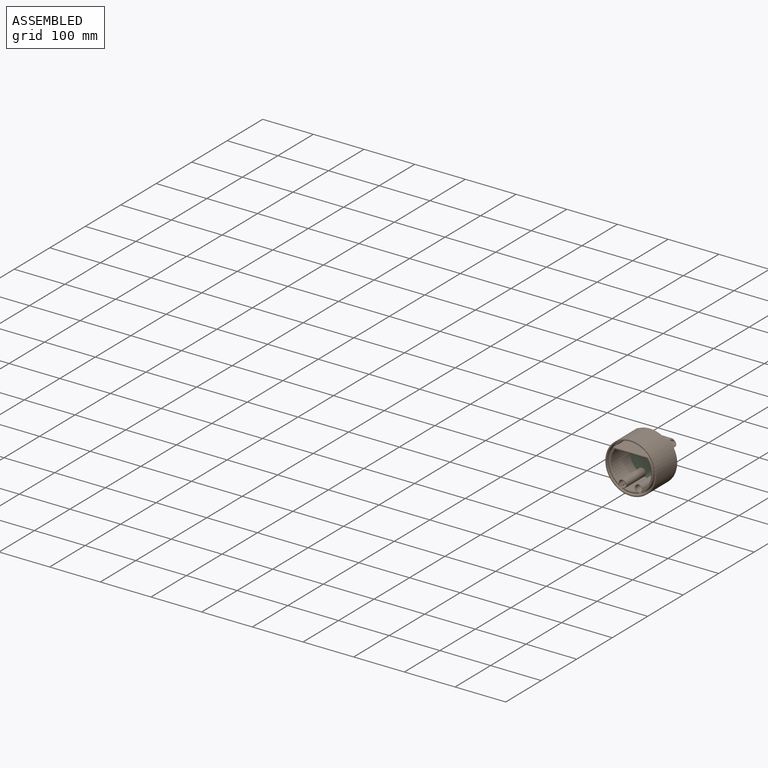
[diagram: assembled view]
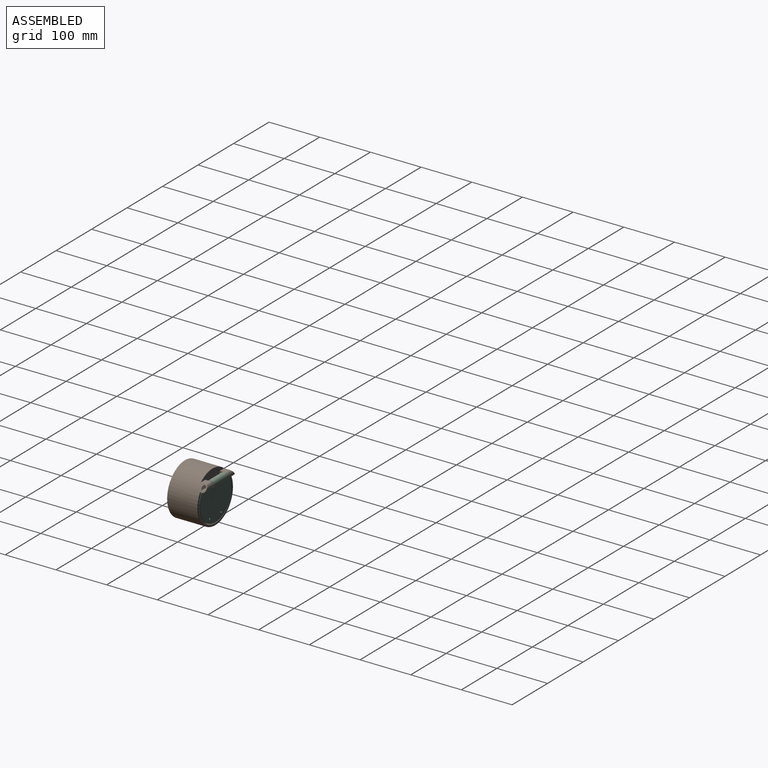
[diagram: assembled view, second angle]
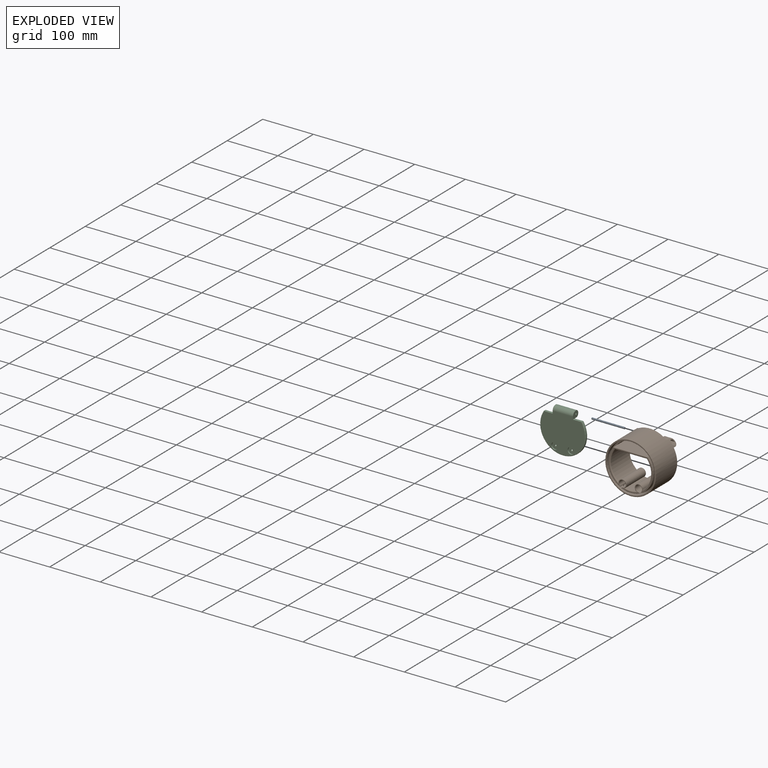
[diagram: exploded view]
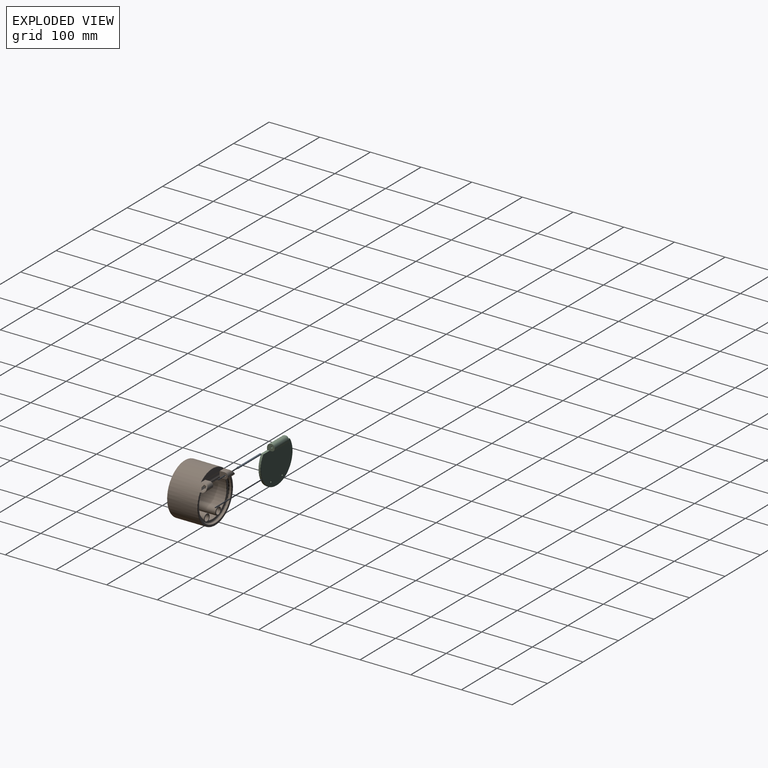
[diagram: exploded view, second angle]
ASSEMBLY  parts=3 mates=4
PART A: 3 faces, bbox 65x3.5x3.5 mm
  f0: cylinder r=1.75mm len=65mm, axis (-1,0,0), area 714.7mm2, adj f1,f2
  f1: plane 3.5x3.5mm, normal (1,0,0), area 9.6mm2, adj f0
  f2: plane 3.5x3.5mm, normal (-1,0,0), area 9.6mm2, adj f0
PART B: 107 faces, bbox 108.8x71.1x108.8 mm
  f0: plane 41x3.27mm, normal (0,1,0), area 133.9mm2, adj f20,f22,f33,f106
  f1: cylinder r=4.62mm len=11.63mm, axis (1,0,0), area 233mm2, adj f18,f98
  f2: plane 11.26x4.57mm, normal (0,0.16,0.99), area 50.8mm2, adj f3,f7,f18,f96
  f3: plane 10.79x4.35mm, normal (0,0.93,0.36), area 42.4mm2, adj f2,f4,f18,f96
  f4: plane 7.54x3.66mm, normal (0,0.78,-0.63), area 27mm2, adj f3,f5,f18,f96
  f5: plane 4.86x4.59mm, normal (0,-0.16,-0.99), area 20.6mm2, adj f4,f6,f18,f96
  f6: plane 8.7x4.36mm, normal (0,-0.93,-0.36), area 31.5mm2, adj f5,f7,f18,f96
  f7: plane 11.29x3.63mm, normal (0,-0.78,0.63), area 46.1mm2, adj f2,f6,f18,f96
  f8: cylinder r=44.17mm len=67.28mm, axis (0,-1,0), area 666.1mm2, adj f57,f65,f66,f83
  f9: plane 87.35x71.59mm, normal (0,-1,0), area 424.1mm2, adj f66,f67,f68,f69,f72,f73,f74,f75
  f10: cylinder r=6.5mm len=53mm, axis (0,-1,0), area 1984.3mm2, adj f43,f53,f54,f55,f80
  f11: cylinder r=44.17mm len=36.19mm, axis (0,-1,0), area 317mm2, adj f64,f69,f77,f92
  f12: cylinder r=6.5mm len=53mm, axis (0,-1,0), area 1976.7mm2, adj f42,f50,f51,f52,f89
  f13: plane 87.2x68.8mm, normal (0,1,0), area 650.1mm2, adj f26,f27,f37,f40,f41,f101,f102,f103
  f14: cylinder r=40mm len=56.62mm, axis (0,-1,0), area 3338.2mm2, adj f17,f39,f73,f101
  f15: cylinder r=40mm len=52.5mm, axis (0,-1,0), area 1174.7mm2, adj f38,f39,f72,f105
  f16: plane 64.16x11.8mm, normal (0,1,0), area 518.3mm2, adj f24,f25,f34,f71
  f17: plane 62.93x52.5mm, normal (0,0,-1), area 3303.9mm2, adj f14,f23,f74,f106
  f18: cylinder r=50mm len=100mm, axis (0,1,0), area 18440.8mm2, adj f1,f2,f3,f4,f5,f6,f7,f19
  f19: plane 18.67x0.5mm, normal (0,1,0), area 9.2mm2, adj f18,f20,f28,f31
  f20: plane 16.2x12.5mm, normal (1,0,0), area 173.6mm2, adj f0,f19,f24,f27,f28,f31,f32,f33
  f21: plane 18.48x0.5mm, normal (0,1,0), area 9.1mm2, adj f18,f22,f29,f30
  f22: plane 16.2x12.5mm, normal (-1,0,0), area 173.6mm2, adj f0,f21,f25,f26,f29,f30,f32,f33
  f23: cylinder r=40mm len=56.68mm, axis (0,-1,0), area 3343.5mm2, adj f17,f38,f75,f102
  f24: plane 12.64x10.2mm, normal (0,0,1), area 118.3mm2, adj f16,f18,f20,f31,f71
  f25: plane 12.46x10.2mm, normal (0,0,1), area 116.5mm2, adj f16,f18,f22,f30,f71
  f26: plane 23.15x10.06mm, normal (0,0,-1), area 185.3mm2, adj f13,f18,f22,f29,f35,f36,f37,f70
  f27: plane 23.34x10.06mm, normal (0,0,-1), area 187mm2, adj f13,f18,f20,f28,f35,f36,f37,f70
  f28: cylinder r=6mm len=22.78mm, axis (-1,0,0), area 195.3mm2, adj f18,f19,f20,f27
  f29: cylinder r=6mm len=22.6mm, axis (-1,0,0), area 193.6mm2, adj f18,f21,f22,f26
  f30: cylinder r=6mm len=18.08mm, axis (-1,0,0), area 142.9mm2, adj f18,f21,f22,f25
  f31: cylinder r=6mm len=18.26mm, axis (1,0,0), area 144.7mm2, adj f18,f19,f20,f24
  f32: plane 41x2.69mm, normal (0,1,0), area 110.2mm2, adj f20,f22,f33,f34
  f33: cylinder r=8mm len=41mm, axis (1,0,0), area 138.2mm2, adj f0,f20,f22,f32
  f34: cylinder r=8mm len=41mm, axis (1,0,0), area 138.2mm2, adj f16,f20,f22,f32
  f35: cylinder r=45.6mm len=91.2mm, axis (0,-1,0), area 589.9mm2, adj f26,f27,f37,f100
  f36: plane 99x74.7mm, normal (0,1,0), area 691.1mm2, adj f26,f27,f70,f100
  f37: torus R=43.6mm, axis (0,1,0), area 612.2mm2, adj f13,f26,f27,f35
  f38: cylinder r=8mm len=54mm, axis (0,-1,0), area 1729.8mm2, adj f15,f23,f72,f75,f94,f104
  f39: cylinder r=8mm len=54mm, axis (0,-1,0), area 1729.8mm2, adj f14,f15,f72,f73,f95,f103
  f40: cylinder r=6mm len=12mm, axis (0,1,0), area 37.7mm2, adj f13,f42
  f41: cylinder r=6mm len=12mm, axis (0,1,0), area 37.7mm2, adj f13,f43
  f42: torus R=6mm, axis (0,1,0), area 31.2mm2, adj f12,f40
  f43: torus R=6mm, axis (0,1,0), area 31.2mm2, adj f10,f41
  f44: plane 99x99mm, normal (0,-1,0), area 526.5mm2, adj f62,f63
  f45: cylinder r=44.17mm len=67.18mm, axis (0,-1,0), area 664.4mm2, adj f57,f59,f68,f86
  f46: cylinder r=47.28mm len=94.55mm, axis (0,-1,0), area 2524.9mm2, adj f60,f62
  f47: plane 92.66x92.66mm, normal (0,-1,0), area 318.5mm2, adj f49,f59,f60,f61,f64,f65,f76,f84
  f48: plane 15.48x2.66mm, normal (0.48,0,0.88), area 22.7mm2, adj f50,f51,f52,f59,f64,f85,f93
  f49: cylinder r=44.17mm len=15mm, axis (0,-1,0), area 22.1mm2, adj f47,f53,f54,f55,f76,f84
  f50: cylinder r=5mm len=29.3mm, axis (0,1,0), area 89mm2, adj f12,f48,f52,f90,f92,f93
  f51: cylinder r=5mm len=29.13mm, axis (0,1,0), area 87.4mm2, adj f12,f48,f52,f85,f86,f88
  f52: bspline ~10.33x7.47mm, area 22.2mm2, adj f12,f48,f50,f51
  f53: cylinder r=5mm len=28.85mm, axis (0,1,0), area 80.4mm2, adj f10,f49,f55,f81,f83,f84
  f54: cylinder r=5mm len=28.99mm, axis (0,1,0), area 82.4mm2, adj f10,f49,f55,f76,f77,f79
  f55: bspline ~10.82x6.72mm, area 19.3mm2, adj f10,f49,f53,f54
  f56: cylinder r=44.17mm len=67.64mm, axis (0,-1,0), area 2396mm2, adj f57,f58,f61
  f57: plane 70.53x41.9mm, normal (0,0,1), area 2815mm2, adj f8,f45,f56,f58,f59,f61,f65,f67
  f58: plane 67.64x15.76mm, normal (0,-1,0), area 740.5mm2, adj f56,f57
  f59: torus R=45.17mm, axis (0,-1,0), area 124.1mm2, adj f45,f47,f48,f57,f64,f85
  f60: torus R=46.28mm, axis (0,-1,0), area 463mm2, adj f46,f47
  f61: torus R=45.17mm, axis (0,-1,0), area 123.3mm2, adj f47,f56,f57
  f62: torus R=47.78mm, axis (0,-1,0), area 234.2mm2, adj f44,f46
  f63: torus R=49.5mm, axis (0,-1,0), area 245.8mm2, adj f18,f44
  f64: torus R=45.17mm, axis (0,-1,0), area 61.4mm2, adj f11,f47,f48,f59,f76,f93
  f65: torus R=45.17mm, axis (0,-1,0), area 124.1mm2, adj f8,f47,f57,f84
  f66: torus R=43.67mm, axis (0,-1,0), area 61.2mm2, adj f8,f9,f67,f82
  f67: cylinder r=0.5mm len=67.64mm, axis (-1,0,0), area 52.9mm2, adj f9,f57,f66,f68
  f68: torus R=43.67mm, axis (0,-1,0), area 61mm2, adj f9,f45,f67,f87
  f69: torus R=43.67mm, axis (0,-1,0), area 29.2mm2, adj f9,f11,f78,f91
  f70: torus R=49.5mm, axis (0,1,0), area 164.5mm2, adj f18,f26,f27,f36
  f71: torus R=49.5mm, axis (0,1,0), area 55.6mm2, adj f16,f18,f24,f25
  f72: torus R=42mm, axis (0,-1,0), area 77.3mm2, adj f9,f15,f38,f39,f94,f95
  f73: torus R=42mm, axis (0,-1,0), area 207.7mm2, adj f9,f14,f39,f74,f95
  f74: cylinder r=2mm len=64.85mm, axis (-1,0,0), area 200.7mm2, adj f9,f17,f73,f75
  f75: torus R=42mm, axis (0,-1,0), area 208.1mm2, adj f9,f23,f38,f74,f94
  f76: bspline ~1.81x1.6mm, area 1.4mm2, adj f47,f49,f54,f64,f77
  f77: cylinder r=0.5mm len=8.5mm, axis (0,-1,0), area 9.2mm2, adj f11,f54,f76,f78
  f78: sphere r=0.5mm, area 0.5mm2, adj f69,f77,f79
  f79: torus R=4.5mm, axis (0,-1,0), area 1.9mm2, adj f9,f54,f78,f80
  f80: torus R=7mm, axis (0,-1,0), area 27.9mm2, adj f9,f10,f79,f81
  f81: torus R=4.5mm, axis (0,-1,0), area 1.8mm2, adj f9,f53,f80,f82
  f82: sphere r=0.5mm, area 0.5mm2, adj f66,f81,f83
  f83: cylinder r=0.5mm len=8.5mm, axis (0,-1,0), area 9.6mm2, adj f8,f53,f82,f84
  f84: bspline ~2.03x1.78mm, area 1.5mm2, adj f47,f49,f53,f65,f83
  f85: bspline ~1.74x1.52mm, area 1.2mm2, adj f48,f51,f59,f86
  f86: cylinder r=0.5mm len=8.5mm, axis (0,-1,0), area 9.3mm2, adj f45,f51,f85,f87
  f87: sphere r=0.5mm, area 0.5mm2, adj f68,f86,f88
  f88: torus R=4.5mm, axis (0,-1,0), area 1.9mm2, adj f9,f51,f87,f89
  f89: torus R=7mm, axis (0,-1,0), area 27.8mm2, adj f9,f12,f88,f90
  f90: torus R=4.5mm, axis (0,-1,0), area 1.9mm2, adj f9,f50,f89,f91
  f91: sphere r=0.5mm, area 0.4mm2, adj f69,f90,f92
  f92: cylinder r=0.5mm len=8.5mm, axis (0,1,0), area 9.3mm2, adj f11,f50,f91,f93
  f93: bspline ~1.76x1.32mm, area 1.3mm2, adj f48,f50,f64,f92
  f94: torus R=7.5mm, axis (0,-1,0), area 27.9mm2, adj f9,f38,f72,f75
  f95: torus R=7.5mm, axis (0,-1,0), area 27.9mm2, adj f9,f39,f72,f73
  f96: plane 9.12x8.63mm, normal (1,0,0), area 45.8mm2, adj f2,f3,f4,f5,f6,f7,f97
  f97: cylinder r=1.75mm len=10mm, axis (-1,0,0), area 110mm2, adj f22,f96
  f98: plane 9.24x9.24mm, normal (-1,0,0), area 57.4mm2, adj f1,f99
  f99: cylinder r=1.75mm len=10mm, axis (1,0,0), area 110mm2, adj f20,f98
  f100: torus R=46.1mm, axis (0,1,0), area 154.8mm2, adj f26,f27,f35,f36
  f101: torus R=40.5mm, axis (0,1,0), area 50.7mm2, adj f13,f14,f103,f106
  f102: torus R=40.5mm, axis (0,1,0), area 50.7mm2, adj f13,f23,f104,f106
  f103: torus R=7.5mm, axis (0,1,0), area 25.4mm2, adj f13,f39,f101,f105
  f104: torus R=7.5mm, axis (0,1,0), area 25.4mm2, adj f13,f38,f102,f105
  f105: torus R=40.5mm, axis (0,1,0), area 18.5mm2, adj f13,f15,f103,f104
  f106: cylinder r=0.5mm len=63.42mm, axis (-1,0,0), area 49.6mm2, adj f0,f17,f26,f27,f101,f102
PART C: 24 faces, bbox 97.4x15x86.4 mm
  f0: cylinder r=45mm len=90mm, axis (0,-1,0), area 677.8mm2, adj f2,f4,f14,f23
  f1: plane 15x13mm, normal (1,0,0), area 156.2mm2, adj f2,f5,f6,f7,f8,f10,f11,f12
  f2: plane 17.53x5mm, normal (0,0,1), area 87.3mm2, adj f0,f1,f7,f9,f14,f23
  f3: plane 15x13mm, normal (-1,0,0), area 156.2mm2, adj f4,f5,f6,f7,f8,f10,f11,f12
  f4: plane 17.71x5mm, normal (0,0,1), area 88.2mm2, adj f0,f3,f7,f9,f14,f23
  f5: plane 40x1mm, normal (0,0,1), area 40mm2, adj f1,f3,f11,f12
  f6: plane 40x4mm, normal (0,0,-1), area 160mm2, adj f1,f3,f9,f10
  f7: plane 88x73.7mm, normal (0,-1,0), area 5028.6mm2, adj f1,f2,f3,f4,f12,f14,f15,f17
  f8: plane 40x1mm, normal (0,1,0), area 40mm2, adj f1,f3,f10,f11
  f9: plane 89x69.2mm, normal (0,1,0), area 5164.7mm2, adj f2,f4,f6,f21,f22,f23
  f10: cylinder r=6mm len=40mm, axis (1,0,0), area 377mm2, adj f1,f3,f6,f8
  f11: cylinder r=6mm len=40mm, axis (1,0,0), area 377mm2, adj f1,f3,f5,f8
  f12: cylinder r=8mm len=40mm, axis (1,0,0), area 502.7mm2, adj f1,f3,f5,f7
  f13: cylinder r=1.75mm len=40mm, axis (1,0,0), area 439.8mm2, adj f1,f3
  f14: torus R=44mm, axis (0,1,0), area 302.5mm2, adj f0,f2,f4,f7
  f15: cylinder r=6.5mm len=13mm, axis (0,-1,0), area 102.1mm2, adj f7,f16
  f16: plane 13x13mm, normal (0,-1,0), area 125.7mm2, adj f15,f20
  f17: cylinder r=6.5mm len=13mm, axis (0,-1,0), area 102.1mm2, adj f7,f18
  f18: plane 13x13mm, normal (0,-1,0), area 125.7mm2, adj f17,f19
  f19: cylinder r=1.5mm len=3mm, axis (0,1,0), area 18.8mm2, adj f18,f21
  f20: cylinder r=1.5mm len=3mm, axis (0,1,0), area 18.8mm2, adj f16,f22
  f21: torus R=2mm, axis (0,1,0), area 8.3mm2, adj f9,f19
  f22: torus R=2mm, axis (0,1,0), area 8.3mm2, adj f9,f20
  f23: torus R=44.5mm, axis (0,1,0), area 151.7mm2, adj f0,f2,f4,f9
PLACE A rot(axis=(-1,0,0),90deg) t=(115.05,-11.23,61.92)mm
PLACE B t=(116.96,20.97,30.72)mm
PLACE C t=(116.46,20.97,30.72)mm
MATE revolute B.f1 <-> B.f1  axis (-1,0,0) through (137.55,20.47,62.42)mm
MATE revolute C.f13 <-> C.f13  axis (1,0,0) through (136.55,20.47,62.42)mm
MATE revolute A.f0 <-> B.f1  axis (1,0,0) through (147.55,20.47,62.42)mm
MATE revolute C.f13 <-> B.f1  axis (-1,0,0) through (96.55,20.47,62.42)mm
